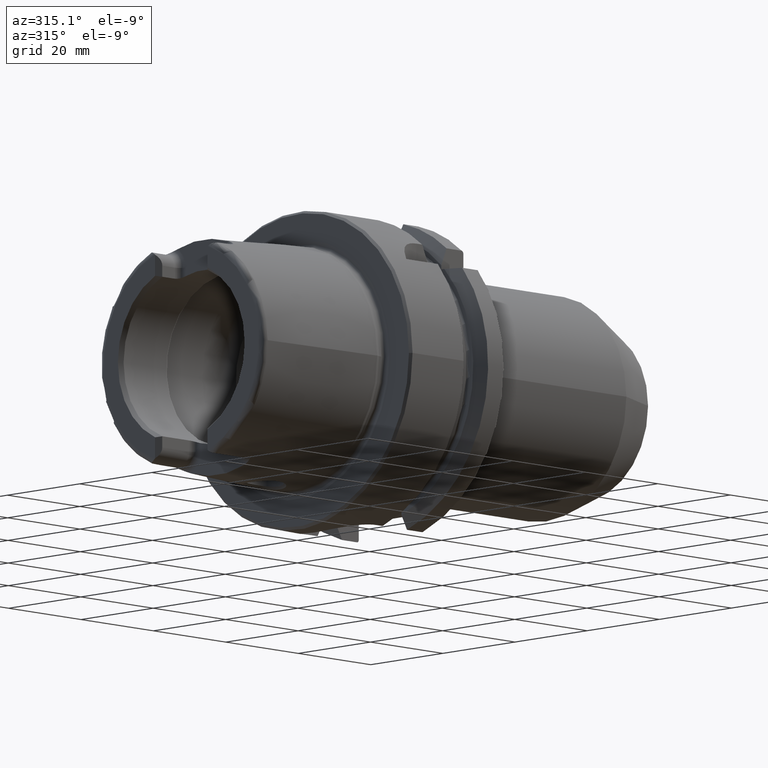
[diagram: clean part render]
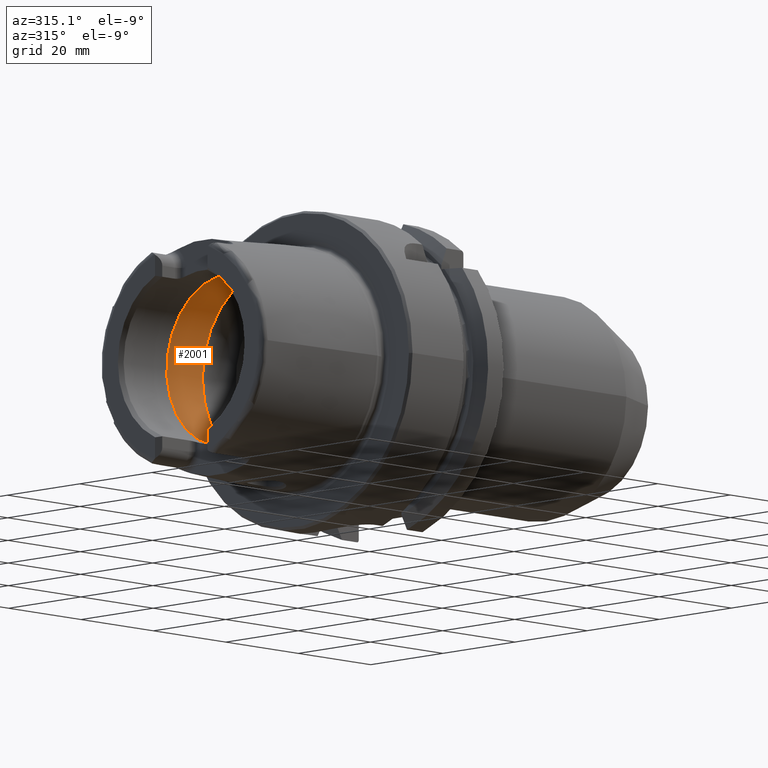
[diagram: same view with one face highlighted and labeled with its STEP entity id]
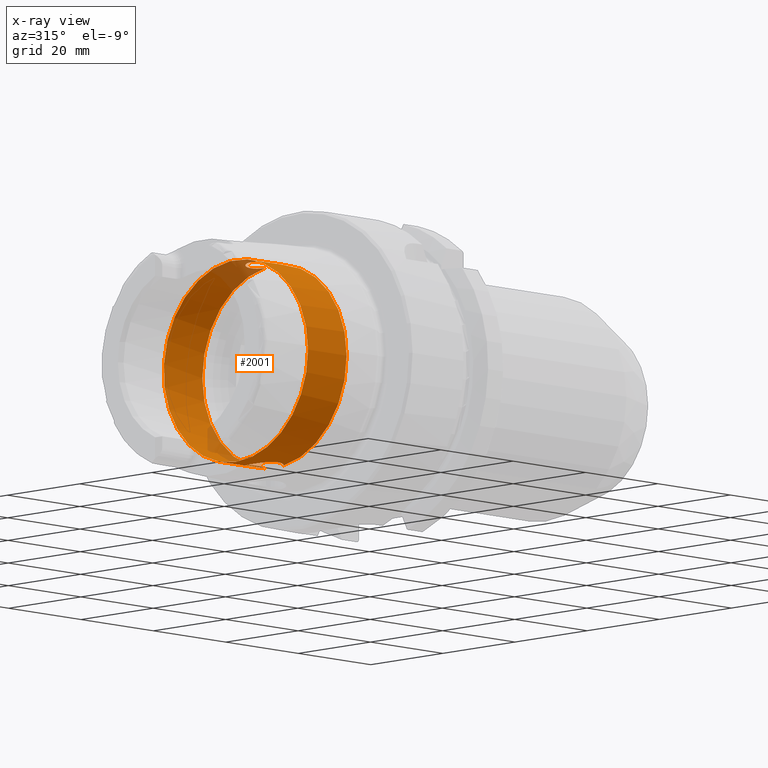
[diagram: x-ray of the same camera — body ghosted, the highlighted face saturated]
A machine part, auxiliary view. The second image highlights one B-rep face of the part: STEP entity #2001.
The next image is the same camera in x-ray: the body ghosted, the highlighted face saturated — about 8% of this face is hidden behind the body in this view.
In plain terms, the highlighted cylindrical surface (bore or boss wall) has radius 20 mm, axis along (-1, 0, 0).
Its self-contained STEP definition (entity closure, byte-faithful):
#132=B_SPLINE_CURVE_WITH_KNOTS('',3,(#3571,#3572,#3573,#3574,#3575,#3576,
#3577,#3578,#3579,#3580,#3581,#3582,#3583,#3584,#3585,#3586,#3587,#3588,
#3589,#3590,#3591,#3592,#3593,#3594,#3595,#3596,#3597,#3598,#3599,#3600,
#3601),.UNSPECIFIED.,.F.,.F.,(4,2,2,2,2,2,2,2,2,2,2,3,2,2,4),(-1.43107314142755,
-1.4161913421645,-1.27456976724955,-1.1329481923346,-0.991326617419658,
-0.849705042504712,-0.708089569336007,-0.566474096167302,-0.424858622998598,
-0.283243149829893,-0.141621574914946,0.,0.141621574914946,0.283243149829893,
0.298124949100151),.UNSPECIFIED.);
#137=B_SPLINE_CURVE_WITH_KNOTS('',3,(#3740,#3741,#3742,#3743,#3744,#3745,
#3746,#3747,#3748,#3749,#3750,#3751,#3752,#3753,#3754,#3755,#3756,#3757,
#3758,#3759,#3760,#3761,#3762,#3763,#3764,#3765,#3766,#3767,#3768,#3769,
#3770),.UNSPECIFIED.,.F.,.F.,(4,2,2,3,2,2,2,2,2,2,2,2,2,2,4),(-0.298124949092949,
-0.283243149829893,-0.141621574914946,0.,0.141621574914946,0.283243149829893,
0.424858622998598,0.566474096167302,0.708089569336007,0.849705042504712,
0.991326617419658,1.1329481923346,1.27456976724955,1.4161913421645,1.43107314143475),
 .UNSPECIFIED.);
#194=CYLINDRICAL_SURFACE('',#2178,20.);
#248=FACE_OUTER_BOUND('',#375,.T.);
#375=EDGE_LOOP('',(#1487,#1488,#1489,#1490,#1491,#1492,#1493,#1494,#1495));
#506=LINE('',#3786,#616);
#616=VECTOR('',#2533,20.);
#716=CIRCLE('',#2179,20.);
#717=CIRCLE('',#2180,20.);
#718=CIRCLE('',#2181,20.);
#719=CIRCLE('',#2182,20.);
#720=CIRCLE('',#2183,20.);
#881=VERTEX_POINT('',#3557);
#882=VERTEX_POINT('',#3570);
#885=VERTEX_POINT('',#3725);
#887=VERTEX_POINT('',#3739);
#888=VERTEX_POINT('',#3783);
#889=VERTEX_POINT('',#3785);
#890=VERTEX_POINT('',#3787);
#1110=EDGE_CURVE('',#882,#881,#132,.T.);
#1116=EDGE_CURVE('',#887,#885,#137,.T.);
#1119=EDGE_CURVE('',#888,#885,#716,.T.);
#1120=EDGE_CURVE('',#888,#889,#506,.T.);
#1121=EDGE_CURVE('',#889,#890,#717,.T.);
#1122=EDGE_CURVE('',#890,#889,#718,.T.);
#1123=EDGE_CURVE('',#882,#888,#719,.T.);
#1124=EDGE_CURVE('',#887,#881,#720,.T.);
#1487=ORIENTED_EDGE('',*,*,#1116,.T.);
#1488=ORIENTED_EDGE('',*,*,#1119,.F.);
#1489=ORIENTED_EDGE('',*,*,#1120,.T.);
#1490=ORIENTED_EDGE('',*,*,#1121,.T.);
#1491=ORIENTED_EDGE('',*,*,#1122,.T.);
#1492=ORIENTED_EDGE('',*,*,#1120,.F.);
#1493=ORIENTED_EDGE('',*,*,#1123,.F.);
#1494=ORIENTED_EDGE('',*,*,#1110,.T.);
#1495=ORIENTED_EDGE('',*,*,#1124,.F.);
#2001=ADVANCED_FACE('',(#248),#194,.F.);
#2178=AXIS2_PLACEMENT_3D('',#3782,#2529,#2530);
#2179=AXIS2_PLACEMENT_3D('',#3784,#2531,#2532);
#2180=AXIS2_PLACEMENT_3D('',#3788,#2534,#2535);
#2181=AXIS2_PLACEMENT_3D('',#3789,#2536,#2537);
#2182=AXIS2_PLACEMENT_3D('',#3790,#2538,#2539);
#2183=AXIS2_PLACEMENT_3D('',#3791,#2540,#2541);
#2529=DIRECTION('center_axis',(-1.,0.,0.));
#2530=DIRECTION('ref_axis',(0.,1.,0.));
#2531=DIRECTION('center_axis',(-1.,0.,0.));
#2532=DIRECTION('ref_axis',(0.,0.,1.));
#2533=DIRECTION('',(-1.,0.,0.));
#2534=DIRECTION('center_axis',(-1.,0.,0.));
#2535=DIRECTION('ref_axis',(0.,0.,1.));
#2536=DIRECTION('center_axis',(-1.,0.,0.));
#2537=DIRECTION('ref_axis',(0.,0.,1.));
#2538=DIRECTION('center_axis',(-1.,0.,0.));
#2539=DIRECTION('ref_axis',(0.,0.,1.));
#2540=DIRECTION('center_axis',(-1.,0.,0.));
#2541=DIRECTION('ref_axis',(0.,0.,1.));
#3557=CARTESIAN_POINT('',(-6.2449979983984,2.54410376580264,-19.8375284758165));
#3570=CARTESIAN_POINT('',(-6.2449979983984,-2.54410376580264,-19.8375284758165));
#3571=CARTESIAN_POINT('Ctrl Pts',(-6.2449979983984,-2.54410376580264,-19.8375284758165));
#3572=CARTESIAN_POINT('Ctrl Pts',(-6.27894943420456,-2.58086966932454,-19.8328133585216));
#3573=CARTESIAN_POINT('Ctrl Pts',(-6.31342869219743,-2.61672955109653,-19.8281105439642));
#3574=CARTESIAN_POINT('Ctrl Pts',(-6.68067160381732,-2.98397246271642,-19.7789868876592));
#3575=CARTESIAN_POINT('Ctrl Pts',(-7.10159661632629,-3.27238367725626,-19.731429741537));
#3576=CARTESIAN_POINT('Ctrl Pts',(-8.0251754070192,-3.65542701546408,-19.6640704965084));
#3577=CARTESIAN_POINT('Ctrl Pts',(-8.52792808361685,-3.75,-19.6452920568771));
#3578=CARTESIAN_POINT('Ctrl Pts',(-9.47207191638316,-3.75,-19.6452920568771));
#3579=CARTESIAN_POINT('Ctrl Pts',(-9.97482459298081,-3.65542701546408,-19.6640704965084));
#3580=CARTESIAN_POINT('Ctrl Pts',(-10.8984033836737,-3.27238367725626,-19.731429741537));
#3581=CARTESIAN_POINT('Ctrl Pts',(-11.3193283961827,-2.98397246271642,-19.7789868876592));
#3582=CARTESIAN_POINT('Ctrl Pts',(-11.9839581446669,-2.31934271423217,-19.8678900149943));
#3583=CARTESIAN_POINT('Ctrl Pts',(-12.2723805817074,-1.89841159537053,-19.9150796801946));
#3584=CARTESIAN_POINT('Ctrl Pts',(-12.6554320620407,-0.974811677040414,
-19.9815942165963));
#3585=CARTESIAN_POINT('Ctrl Pts',(-12.75,-0.472051577229017,-20.));
#3586=CARTESIAN_POINT('Ctrl Pts',(-12.75,0.472051577229015,-20.));
#3587=CARTESIAN_POINT('Ctrl Pts',(-12.6554320620407,0.974811677040408,-19.9815942165963));
#3588=CARTESIAN_POINT('Ctrl Pts',(-12.2723805817074,1.89841159537052,-19.9150796801946));
#3589=CARTESIAN_POINT('Ctrl Pts',(-11.9839581446669,2.31934271423217,-19.8678900149943));
#3590=CARTESIAN_POINT('Ctrl Pts',(-11.3193283961827,2.98397246271642,-19.7789868876592));
#3591=CARTESIAN_POINT('Ctrl Pts',(-10.8984033836737,3.27238367725626,-19.731429741537));
#3592=CARTESIAN_POINT('Ctrl Pts',(-9.97482459298081,3.65542701546408,-19.6640704965084));
#3593=CARTESIAN_POINT('Ctrl Pts',(-9.47207191638316,3.75,-19.6452920568771));
#3594=CARTESIAN_POINT('Ctrl Pts',(-9.,3.75,-19.6452920568771));
#3595=CARTESIAN_POINT('Ctrl Pts',(-8.52792808361685,3.75,-19.6452920568771));
#3596=CARTESIAN_POINT('Ctrl Pts',(-8.0251754070192,3.65542701546408,-19.6640704965084));
#3597=CARTESIAN_POINT('Ctrl Pts',(-7.10159661632629,3.27238367725626,-19.731429741537));
#3598=CARTESIAN_POINT('Ctrl Pts',(-6.68067160381732,2.98397246271642,-19.7789868876592));
#3599=CARTESIAN_POINT('Ctrl Pts',(-6.31342869218053,2.61672955107963,-19.8281105439665));
#3600=CARTESIAN_POINT('Ctrl Pts',(-6.27894943419011,2.5808696693089,-19.8328133585236));
#3601=CARTESIAN_POINT('Ctrl Pts',(-6.2449979983984,2.54410376580264,-19.8375284758165));
#3725=CARTESIAN_POINT('',(-6.2449979983984,-2.54410376580264,19.8375284758165));
#3739=CARTESIAN_POINT('',(-6.2449979983984,2.54410376580264,19.8375284758165));
#3740=CARTESIAN_POINT('Ctrl Pts',(-6.2449979983984,2.54410376580264,19.8375284758165));
#3741=CARTESIAN_POINT('Ctrl Pts',(-6.27894943420456,2.58086966932454,19.8328133585216));
#3742=CARTESIAN_POINT('Ctrl Pts',(-6.31342869219742,2.61672955109653,19.8281105439642));
#3743=CARTESIAN_POINT('Ctrl Pts',(-6.68067160381731,2.98397246271642,19.7789868876592));
#3744=CARTESIAN_POINT('Ctrl Pts',(-7.10159661632629,3.27238367725626,19.731429741537));
#3745=CARTESIAN_POINT('Ctrl Pts',(-8.02517540701919,3.65542701546408,19.6640704965084));
#3746=CARTESIAN_POINT('Ctrl Pts',(-8.52792808361684,3.75,19.6452920568771));
#3747=CARTESIAN_POINT('Ctrl Pts',(-9.,3.75,19.6452920568771));
#3748=CARTESIAN_POINT('Ctrl Pts',(-9.47207191638315,3.75,19.6452920568771));
#3749=CARTESIAN_POINT('Ctrl Pts',(-9.97482459298081,3.65542701546408,19.6640704965084));
#3750=CARTESIAN_POINT('Ctrl Pts',(-10.8984033836737,3.27238367725626,19.731429741537));
#3751=CARTESIAN_POINT('Ctrl Pts',(-11.3193283961827,2.98397246271642,19.7789868876592));
#3752=CARTESIAN_POINT('Ctrl Pts',(-11.9839581446669,2.31934271423217,19.8678900149943));
#3753=CARTESIAN_POINT('Ctrl Pts',(-12.2723805817074,1.89841159537052,19.9150796801946));
#3754=CARTESIAN_POINT('Ctrl Pts',(-12.6554320620407,0.97481167704041,19.9815942165963));
#3755=CARTESIAN_POINT('Ctrl Pts',(-12.75,0.472051577229015,20.));
#3756=CARTESIAN_POINT('Ctrl Pts',(-12.75,-0.472051577229017,20.));
#3757=CARTESIAN_POINT('Ctrl Pts',(-12.6554320620407,-0.974811677040414,
19.9815942165963));
#3758=CARTESIAN_POINT('Ctrl Pts',(-12.2723805817074,-1.89841159537053,19.9150796801946));
#3759=CARTESIAN_POINT('Ctrl Pts',(-11.9839581446669,-2.31934271423217,19.8678900149943));
#3760=CARTESIAN_POINT('Ctrl Pts',(-11.3193283961827,-2.98397246271642,19.7789868876592));
#3761=CARTESIAN_POINT('Ctrl Pts',(-10.8984033836737,-3.27238367725626,19.731429741537));
#3762=CARTESIAN_POINT('Ctrl Pts',(-9.9748245929808,-3.65542701546408,19.6640704965084));
#3763=CARTESIAN_POINT('Ctrl Pts',(-9.47207191638315,-3.75,19.6452920568771));
#3764=CARTESIAN_POINT('Ctrl Pts',(-8.52792808361684,-3.75,19.6452920568771));
#3765=CARTESIAN_POINT('Ctrl Pts',(-8.02517540701919,-3.65542701546408,19.6640704965084));
#3766=CARTESIAN_POINT('Ctrl Pts',(-7.10159661632629,-3.27238367725626,19.731429741537));
#3767=CARTESIAN_POINT('Ctrl Pts',(-6.68067160381731,-2.98397246271642,19.7789868876592));
#3768=CARTESIAN_POINT('Ctrl Pts',(-6.31342869218052,-2.61672955107963,19.8281105439665));
#3769=CARTESIAN_POINT('Ctrl Pts',(-6.27894943419011,-2.5808696693089,19.8328133585236));
#3770=CARTESIAN_POINT('Ctrl Pts',(-6.2449979983984,-2.54410376580264,19.8375284758165));
#3782=CARTESIAN_POINT('Origin',(-11.5812812165501,0.,0.));
#3783=CARTESIAN_POINT('',(-6.2449979983984,-20.,2.44929359829471E-15));
#3784=CARTESIAN_POINT('Origin',(-6.2449979983984,0.,0.));
#3785=CARTESIAN_POINT('',(-16.9175644347018,-20.,2.44929359829471E-15));
#3786=CARTESIAN_POINT('',(-11.5812812165501,-20.,2.44929359829471E-15));
#3787=CARTESIAN_POINT('',(-16.9175644347018,-2.44929359829471E-15,-20.));
#3788=CARTESIAN_POINT('Origin',(-16.9175644347018,0.,0.));
#3789=CARTESIAN_POINT('Origin',(-16.9175644347018,0.,0.));
#3790=CARTESIAN_POINT('Origin',(-6.2449979983984,0.,0.));
#3791=CARTESIAN_POINT('Origin',(-6.2449979983984,0.,0.));